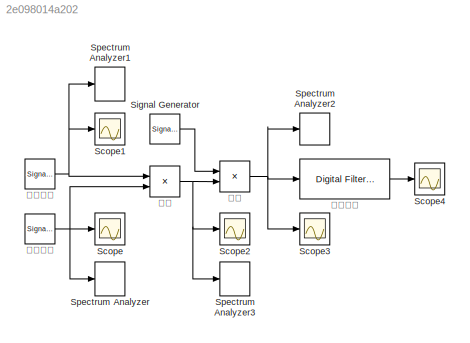
MODEL slx_2e098014a202
KIND model
CONFIG AbsTol = auto
CONFIG EnableMultiTasking = off
CONFIG FixedStep = auto
CONFIG MaxStep = auto
CONFIG MinStep = auto
CONFIG RelTol = 1e-3
CONFIG SampleTimeConstraint = Unconstrained
CONFIG SolverName = VariableStepAuto
CONFIG StartTime = 0.0
CONFIG StopTime = 6
BLOCK [Scope] Scope
  Floating = off
  NumInputPorts = 1
  ScopeSpecificationString = Simulink.scopes.TimeScopeBlockCfg('CurrentConfiguration', extmgr.ConfigurationSet(extmgr.Configuration('Core','General UI',true),extmgr.Configuration('Core','Source UI',true),extmgr.Configuration('Sources','WiredSimulink',true,'SampleTime','1/10000'),extmgr.Configuration('Visuals','Time Domain',true,'SerializedDisplays',{struct('MinYLimReal','-1.24989','MaxYLimReal','1.24999','YLabelReal','','MinY...<+1402ch>
BLOCK [Scope] Scope1
  Floating = off
  NumInputPorts = 1
  ScopeSpecificationString = Simulink.scopes.TimeScopeBlockCfg('CurrentConfiguration', extmgr.ConfigurationSet(extmgr.Configuration('Core','General UI',true),extmgr.Configuration('Core','Source UI',true),extmgr.Configuration('Sources','WiredSimulink',true,'DataLoggingVariableName','ScopeData1','SampleTime','1/10000'),extmgr.Configuration('Visuals','Time Domain',true,'SerializedDisplays',{struct('MinYLimReal','-1.25','MaxYLimR...<+1410ch>
BLOCK [Scope] Scope2
  Floating = off
  NumInputPorts = 1
  ScopeSpecificationString = Simulink.scopes.TimeScopeBlockCfg('CurrentConfiguration', extmgr.ConfigurationSet(extmgr.Configuration('Core','General UI',true),extmgr.Configuration('Core','Source UI',true),extmgr.Configuration('Sources','WiredSimulink',true,'DataLoggingVariableName','ScopeData2','SampleTime','1/10000'),extmgr.Configuration('Visuals','Time Domain',true,'SerializedDisplays',{struct('MinYLimReal','-1.215','MaxYLim...<+1427ch>
BLOCK [Scope] Scope3
  Floating = off
  NumInputPorts = 1
  ScopeSpecificationString = Simulink.scopes.TimeScopeBlockCfg('CurrentConfiguration', extmgr.ConfigurationSet(extmgr.Configuration('Core','General UI',true),extmgr.Configuration('Core','Source UI',true),extmgr.Configuration('Sources','WiredSimulink',true,'DataLoggingVariableName','ScopeData3','SampleTime','1/10000'),extmgr.Configuration('Visuals','Time Domain',true,'SerializedDisplays',{struct('MinYLimReal','-1.2375','MaxYLi...<+1420ch>
BLOCK [Scope] Scope4
  Floating = off
  NumInputPorts = 1
  ScopeSpecificationString = Simulink.scopes.TimeScopeBlockCfg('CurrentConfiguration', extmgr.ConfigurationSet(extmgr.Configuration('Core','General UI',true),extmgr.Configuration('Core','Source UI',true),extmgr.Configuration('Sources','WiredSimulink',true,'DataLoggingVariableName','ScopeData4','SampleTime','1/10000'),extmgr.Configuration('Visuals','Time Domain',true,'SerializedDisplays',{struct('MinYLimReal','-0.12005','MaxYL...<+1415ch>
BLOCK [SignalGenerator] Signal Generator
  Frequency = 50*pi
  Units = rad/sec
BLOCK [SpectrumAnalyzer] Spectrum Analyzer
  Commented = on
  GraphicalSettings = {"GraphicalSettings":{"Style":{"BackgroundColor":[0.1568627450980392,0.1568627450980392,0.1568627450980392],"AxesColor":[0,0,0],"LabelsColor":[0.6862745098039216,0.6862745098039216,0.6862745098039216],"PreserveColors":false,"Visible":[true],"LineStyle":["-"],"LineColor":[[1,1,0.06666666666666667]],"LineWidth":[1.5],"Marker":["none"],"FontSize":"small"},"Cursors":{"Enabled":false,"XLocation":[2,8],...<+831ch>  <repeated x4 — deduplicated; at blocks: Spectrum Analyzer, Spectrum Analyzer1, Spectrum Analyzer2, Spectrum Analyzer3>
  ScopeFrameLocation = window
  ScopeSpecificationString = spbscopes.SpectrumAnalyzerBlockCfg('CurrentConfiguration', extmgr.ConfigurationSet(extmgr.Configuration('Core','General UI',true),extmgr.Configuration('Core','Source UI',true),extmgr.Configuration('Sources','WiredSimulink',true),extmgr.Configuration('Visuals','Spectrum',true,'AxesProperties',struct('Color',{[0 0 0],[0 0 0]},'XColor',{[0.686274509803922 0.686274509803922 0.686274509803922],[0.68627...<+1359ch>  <repeated x4 — deduplicated; at blocks: Spectrum Analyzer, Spectrum Analyzer1, Spectrum Analyzer2, Spectrum Analyzer3>
  WasSavedAsWebScope = on
  WindowPosition = [700.000000,181.000000,800.000000,500.000000,]
  YLimits = [-53.90048817,31.90113197]
BLOCK [SpectrumAnalyzer] Spectrum Analyzer1
  Commented = on
  ScopeFrameLocation = window
  WasSavedAsWebScope = on
  WindowPosition = [571.000000,756.000000,800.000000,500.000000,]
  YLimits = [-148.33940579,39.99266406]
BLOCK [SpectrumAnalyzer] Spectrum Analyzer2
  Commented = on
  ScopeFrameLocation = window
  WasSavedAsWebScope = on
  WindowPosition = [1421.000000,734.000000,800.000000,500.000000,]
  YLimits = [-211.81638849,42.76231994]
BLOCK [SpectrumAnalyzer] Spectrum Analyzer3
  Commented = on
  ScopeFrameLocation = window
  WasSavedAsWebScope = on
  WindowPosition = [417.000000,148.000000,800.000000,500.000000,]
  YLimits = [-90.72550006,25.99606583]
BLOCK [Reference] 低通滤波  REF=dspfdesign/Digital
Filter Design
  SourceBlock = dspfdesign/Digital\nFilter Design
  SourceType = Digital Filter Design
  UserDataPersistent = on
BLOCK [SignalGenerator] 低频锯齿
  Frequency = pi
  Units = rad/sec
  WaveForm = sawtooth
BLOCK [Product] 解调
BLOCK [Product] 调制
BLOCK [SignalGenerator] 高频正弦
  Frequency = 50*pi
  Units = rad/sec
LINE Signal Generator:1 -> 解调:1
LINE 低通滤波:1 -> Scope4:1
NET 低频锯齿:1 -> Scope:1, Spectrum Analyzer:1, 调制:2
NET 解调:1 -> Scope3:1, Spectrum Analyzer2:1, 低通滤波:1
NET 调制:1 -> Scope2:1, Spectrum Analyzer3:1, 解调:2
NET 高频正弦:1 -> Scope1:1, Spectrum Analyzer1:1, 调制:1
note: NET lines group one-source signal fan-out (src -> all destinations, sorted); 1:1 wires keep LINE
